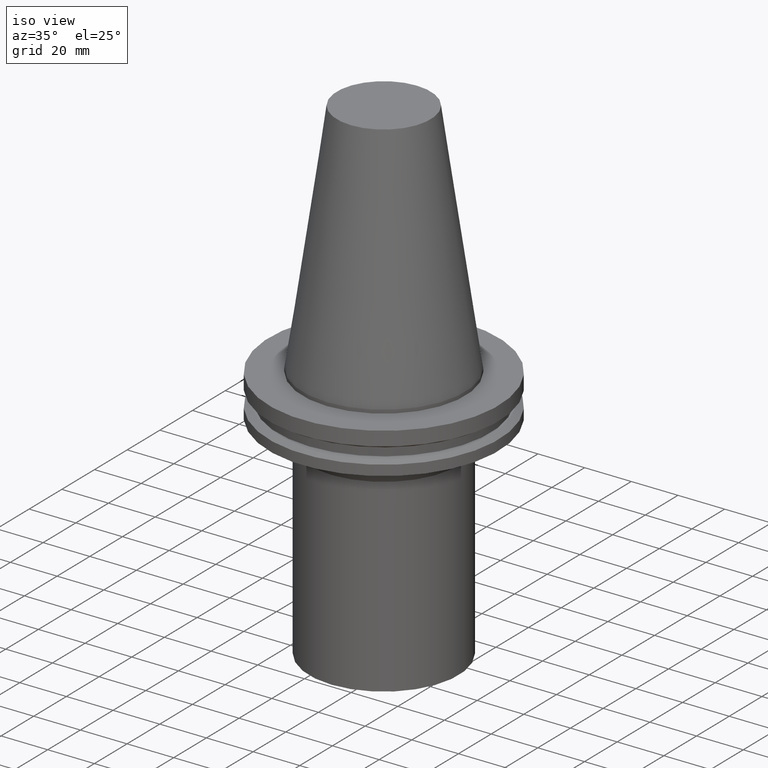
[diagram: clean part render]
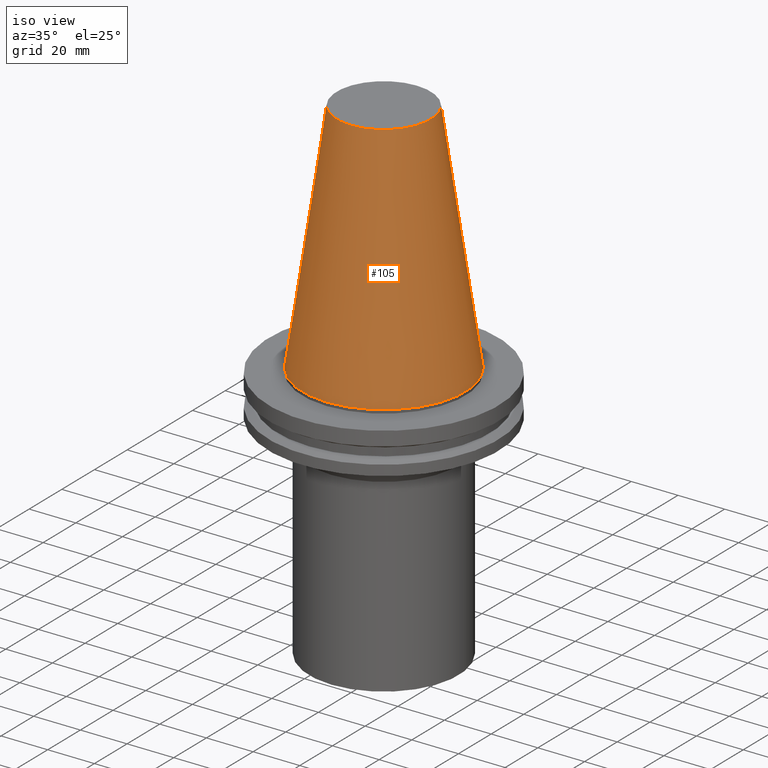
[diagram: same view with one face highlighted and labeled with its STEP entity id]
A machine part, iso view. The second image highlights one B-rep face of the part: STEP entity #105.
In plain terms, the highlighted conical surface has half-angle 8.297 deg.
Its self-contained STEP definition (entity closure, byte-faithful):
#102=EDGE_CURVE('Unnamed[1]',#225,#225,#226,.T.);
#105=ADVANCED_FACE('Unnamed[1]',(#229,#230),#231,.T.);
#114=EDGE_CURVE('Unnamed[1]',#244,#244,#245,.T.);
#225=VERTEX_POINT('',#376);
#226=CIRCLE('',#377,20.1083333297217);
#229=FACE_BOUND('',#381,.T.);
#230=FACE_BOUND('',#382,.T.);
#231=CONICAL_SURFACE('',#383,27.5166666648609,0.144812498273746);
#244=VERTEX_POINT('',#400);
#245=CIRCLE('',#401,34.925);
#376=CARTESIAN_POINT('',(-6.22120573966855E-015,20.1083333297217,101.6));
#377=AXIS2_PLACEMENT_3D('',#524,#525,#526);
#381=EDGE_LOOP('',(#528));
#382=EDGE_LOOP('',(#529));
#383=AXIS2_PLACEMENT_3D('',#530,#531,#532);
#400=CARTESIAN_POINT('',(-4.30483861169435E-031,34.925,4.27707894602213E-015));
#401=AXIS2_PLACEMENT_3D('',#545,#546,#547);
#524=CARTESIAN_POINT('',(-6.22120573966855E-015,-1.24424114793371E-014,101.6));
#525=DIRECTION('',(6.12323399573676E-017,1.22464679914735E-016,-1.0));
#526=DIRECTION('',(-1.23259516440783E-032,1.0,1.22464679914735E-016));
#528=ORIENTED_EDGE('',*,*,#114,.F.);
#529=ORIENTED_EDGE('',*,*,#102,.T.);
#530=CARTESIAN_POINT('',(-3.11060286983428E-015,-6.22120573966855E-015,50.8));
#531=DIRECTION('',(6.12323399573677E-017,1.22464679914735E-016,-1.0));
#532=DIRECTION('',(-1.23259516440783E-032,1.0,1.22464679914735E-016));
#545=CARTESIAN_POINT('',(0.0,0.0,0.0));
#546=DIRECTION('',(6.12323399573677E-017,1.22464679914735E-016,-1.0));
#547=DIRECTION('',(-1.23259516440783E-032,1.0,1.22464679914735E-016));